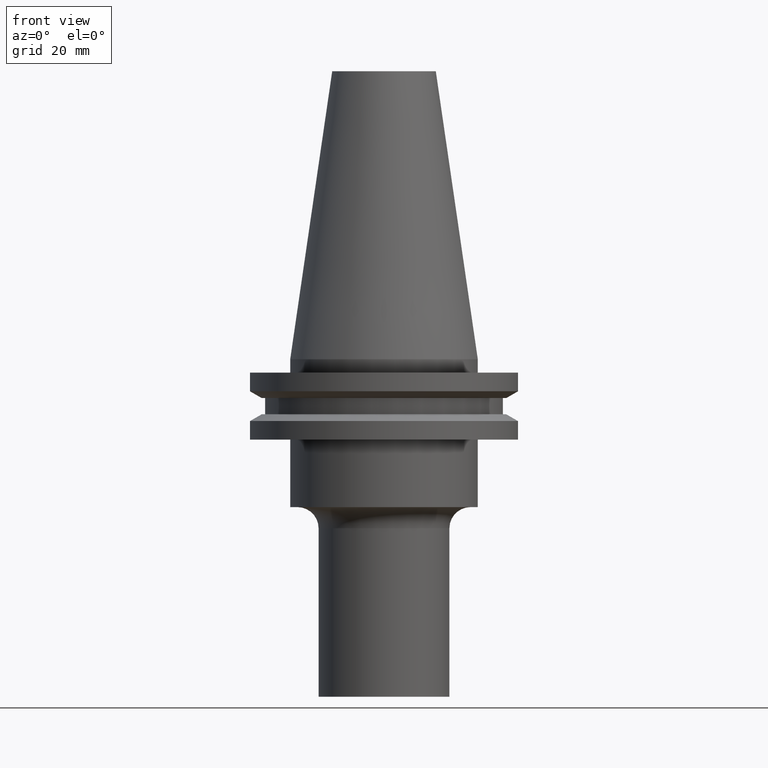
[diagram: clean part render]
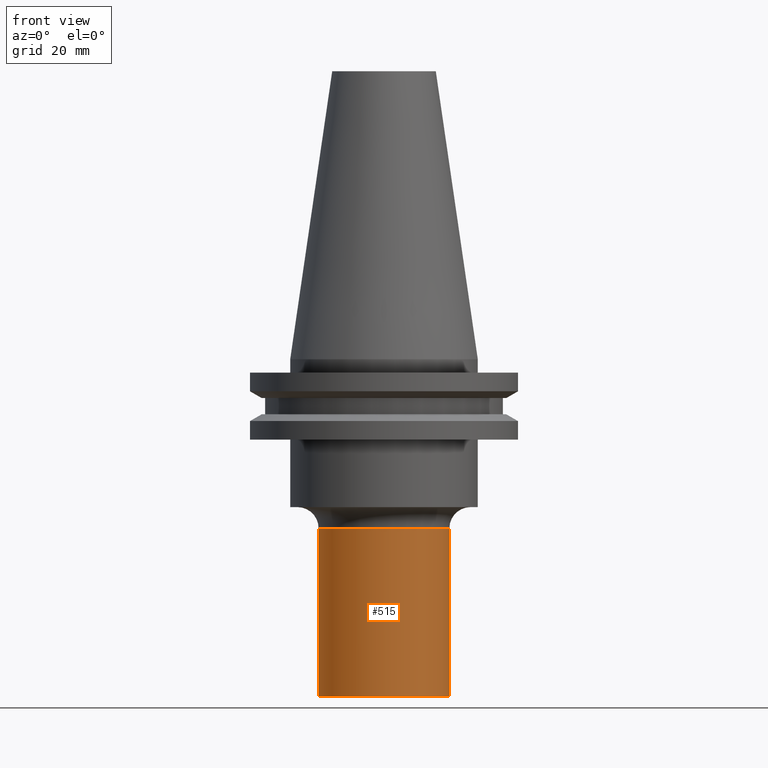
[diagram: same view with one face highlighted and labeled with its STEP entity id]
A machine part, front view. The second image highlights one B-rep face of the part: STEP entity #515.
In plain terms, the highlighted cylindrical surface (partial cylindrical patch) has radius 15.5 mm, axis along (-0, -0, 1).
Its self-contained STEP definition (entity closure, byte-faithful):
#9 = DIRECTION ( 'NONE',  ( -0.000000000000000000, -0.000000000000000000, 1.000000000000000000 ) ) ;
#15 = CARTESIAN_POINT ( 'NONE',  ( 0.000000000000000000, 0.000000000000000000, -40.04999999999999005 ) ) ;
#95 = DIRECTION ( 'NONE',  ( -0.000000000000000000, -0.000000000000000000, 1.000000000000000000 ) ) ;
#102 = AXIS2_PLACEMENT_3D ( 'NONE', #173, #95, #112 ) ;
#103 = VERTEX_POINT ( 'NONE', #665 ) ;
#105 = VERTEX_POINT ( 'NONE', #336 ) ;
#112 = DIRECTION ( 'NONE',  ( 1.000000000000000000, 0.000000000000000000, 0.000000000000000000 ) ) ;
#121 = CARTESIAN_POINT ( 'NONE',  ( 0.000000000000000000, 0.000000000000000000, 0.000000000000000000 ) ) ;
#136 = DIRECTION ( 'NONE',  ( 1.000000000000000000, 0.000000000000000000, 0.000000000000000000 ) ) ;
#152 = EDGE_CURVE ( 'NONE', #334, #105, #557, .T. ) ;
#163 = CIRCLE ( 'NONE', #714, 15.50000000000000000 ) ;
#173 = CARTESIAN_POINT ( 'NONE',  ( 0.000000000000000000, 0.000000000000000000, -80.00000000000000000 ) ) ;
#175 = ORIENTED_EDGE ( 'NONE', *, *, #687, .F. ) ;
#190 = FACE_OUTER_BOUND ( 'NONE', #223, .T. ) ;
#203 = LINE ( 'NONE', #749, #603 ) ;
#207 = ORIENTED_EDGE ( 'NONE', *, *, #211, .F. ) ;
#211 = EDGE_CURVE ( 'NONE', #103, #105, #163, .T. ) ;
#223 = EDGE_LOOP ( 'NONE', ( #175, #635, #602, #207 ) ) ;
#237 = CARTESIAN_POINT ( 'NONE',  ( 15.50000000000000000, 0.000000000000000000, -80.00000000000000000 ) ) ;
#253 = DIRECTION ( 'NONE',  ( 1.000000000000000000, 0.000000000000000000, 0.000000000000000000 ) ) ;
#313 = CARTESIAN_POINT ( 'NONE',  ( 15.50000000000000000, 0.000000000000000000, 0.000000000000000000 ) ) ;
#315 = CYLINDRICAL_SURFACE ( 'NONE', #757, 15.50000000000000000 ) ;
#334 = VERTEX_POINT ( 'NONE', #237 ) ;
#336 = CARTESIAN_POINT ( 'NONE',  ( 15.50000000000000000, 0.000000000000000000, -40.04999999999999005 ) ) ;
#366 = EDGE_CURVE ( 'NONE', #707, #334, #681, .T. ) ;
#430 = DIRECTION ( 'NONE',  ( -0.000000000000000000, -0.000000000000000000, 1.000000000000000000 ) ) ;
#505 = DIRECTION ( 'NONE',  ( -0.000000000000000000, -0.000000000000000000, 1.000000000000000000 ) ) ;
#515 = ADVANCED_FACE ( 'NONE', ( #190 ), #315, .T. ) ;
#557 = LINE ( 'NONE', #313, #741 ) ;
#571 = DIRECTION ( 'NONE',  ( -0.000000000000000000, -0.000000000000000000, 1.000000000000000000 ) ) ;
#602 = ORIENTED_EDGE ( 'NONE', *, *, #152, .T. ) ;
#603 = VECTOR ( 'NONE', #505, 1000.000000000000000 ) ;
#635 = ORIENTED_EDGE ( 'NONE', *, *, #366, .T. ) ;
#665 = CARTESIAN_POINT ( 'NONE',  ( -15.50000000000000000, 1.898202538678397557E-15, -40.04999999999999005 ) ) ;
#681 = CIRCLE ( 'NONE', #102, 15.50000000000000000 ) ;
#687 = EDGE_CURVE ( 'NONE', #707, #103, #203, .T. ) ;
#707 = VERTEX_POINT ( 'NONE', #736 ) ;
#714 = AXIS2_PLACEMENT_3D ( 'NONE', #15, #9, #253 ) ;
#736 = CARTESIAN_POINT ( 'NONE',  ( -15.50000000000000000, 1.898202538678397557E-15, -80.00000000000000000 ) ) ;
#741 = VECTOR ( 'NONE', #571, 1000.000000000000000 ) ;
#749 = CARTESIAN_POINT ( 'NONE',  ( -15.50000000000000000, 1.898202538678397557E-15, 0.000000000000000000 ) ) ;
#757 = AXIS2_PLACEMENT_3D ( 'NONE', #121, #430, #136 ) ;